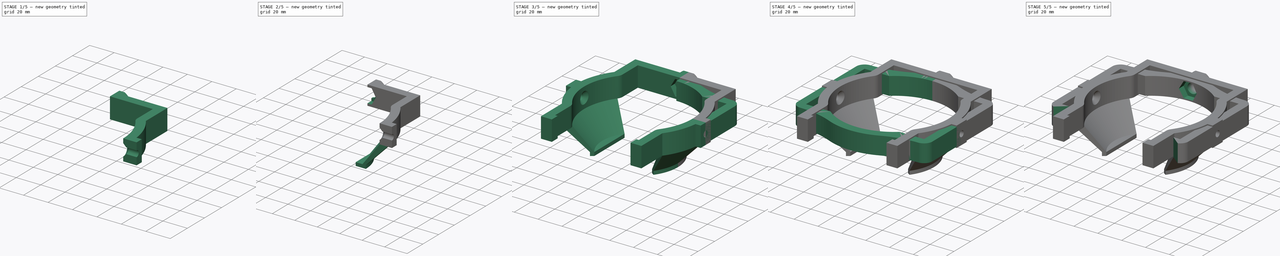
[diagram: build sequence overview — one tinted view per stage of 5, left to right]
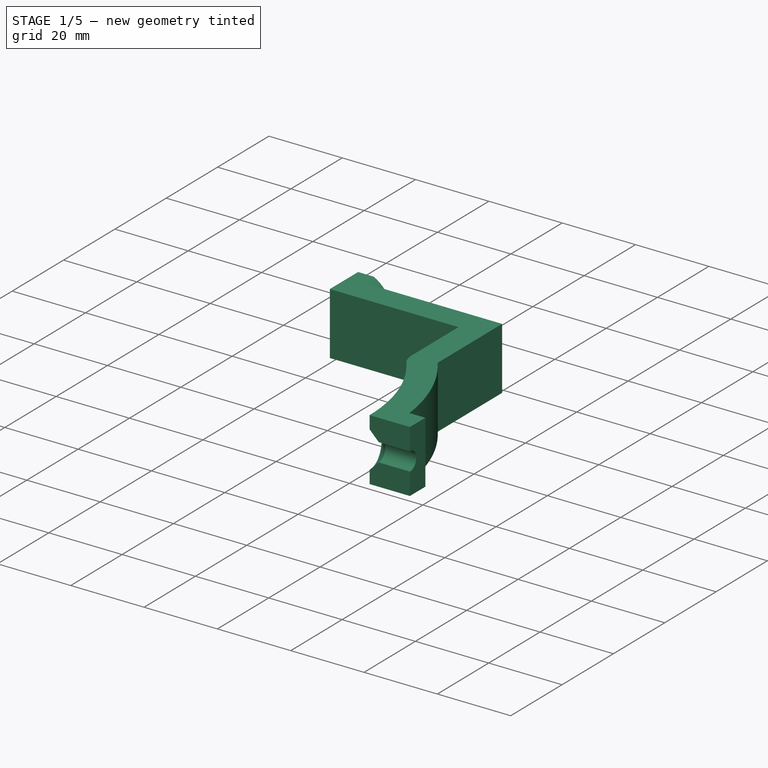
[diagram: stage 1 of 5 — iso view after this stage's code; geometry added in this stage tinted green]
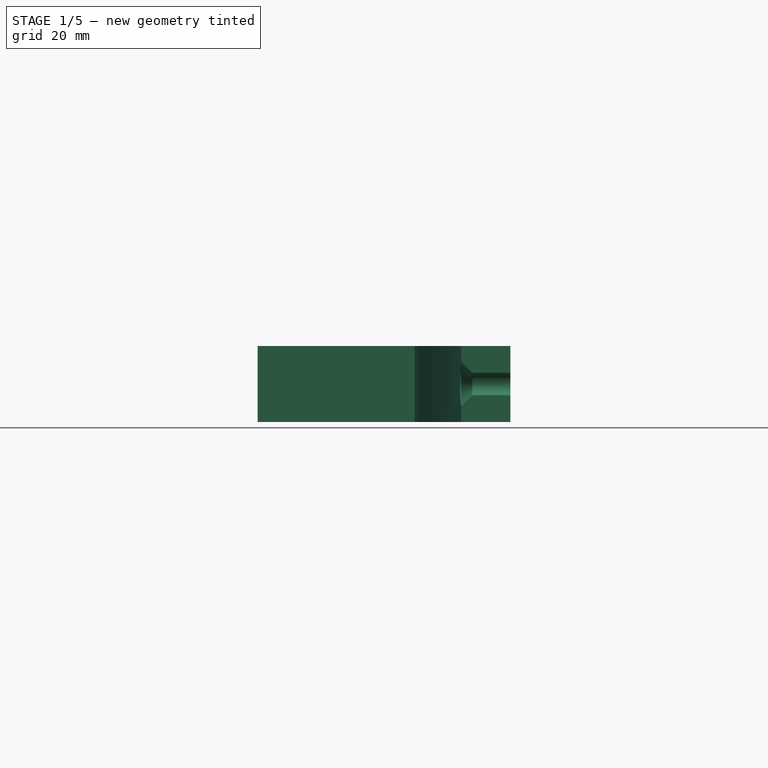
[diagram: stage 1 of 5 — front view after this stage's code; geometry added in this stage tinted green]
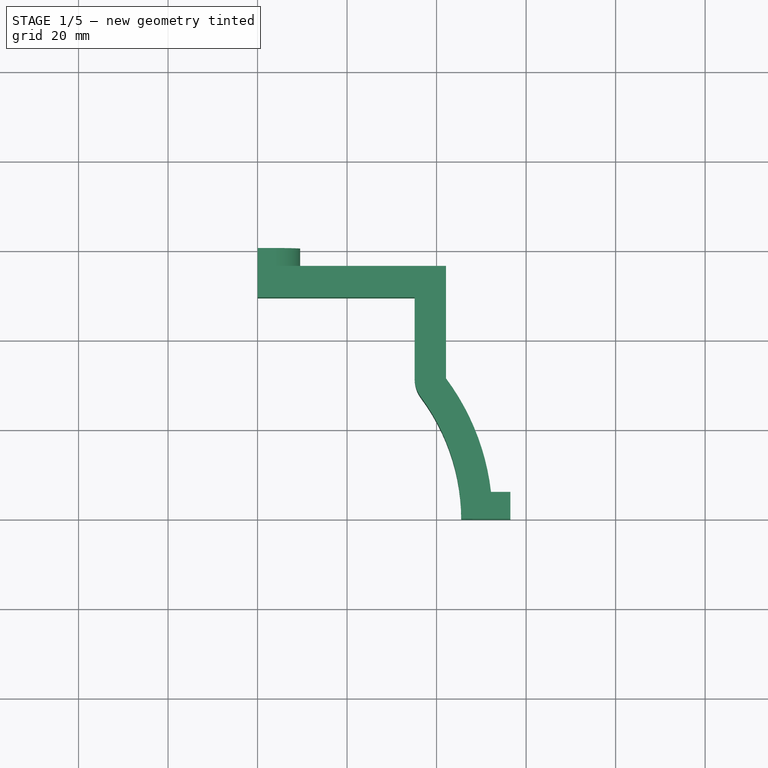
[diagram: stage 1 of 5 — top view after this stage's code; geometry added in this stage tinted green]
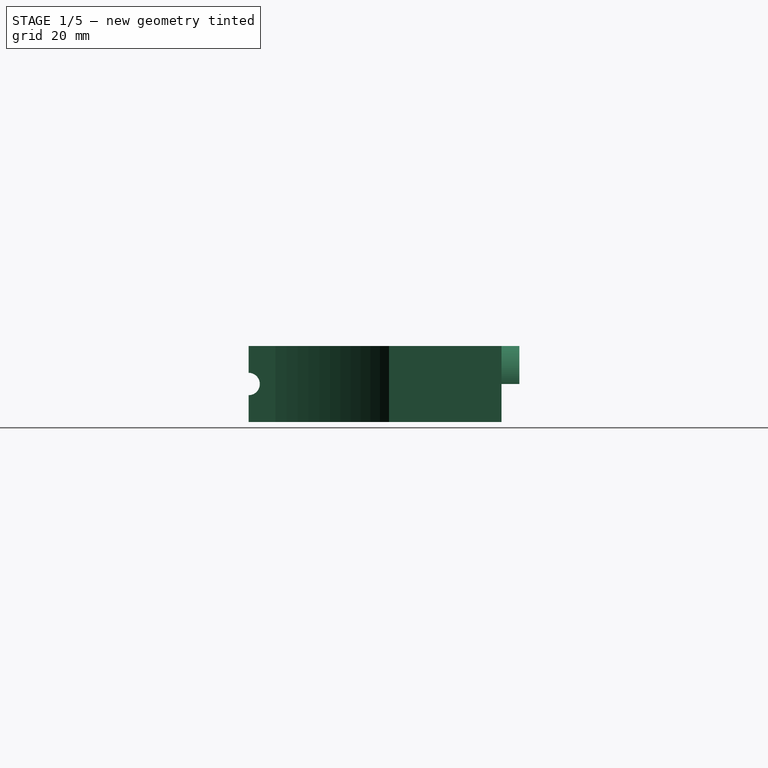
[diagram: stage 1 of 5 — right view after this stage's code; geometry added in this stage tinted green]
FCSTD DOCUMENT  (FreeCAD 0.20R29410 (Git))
Label: datind_ring_70
License: All rights reserved
LicenseURL: http://en.wikipedia.org/wiki/All_rights_reserved
objects: Sketcher::SketchObject×16, PartDesign::Mirrored×10, PartDesign::Pocket×7, PartDesign::Pad×5, PartDesign::MultiTransform×4, PartDesign::Hole×2, PartDesign::Body×2, PartDesign::AdditiveLoft×1
note: 62 computed .brp shape members not serialized (recipe doc carries the construction recipe); baked Part::Feature solids carry a one-line shape summary decoded from their .brp

FEATURE [PartDesign::Body] Body
  Group = -> [Sketch,Pad,Sketch001,Hole,Sketch002,Sketch003,Sketch004,Pad001,MultiTransform,Mirrored,Mirrored001,MultiTransform001,Mirrored002,Mirrored003,Pocket,Pocket001,Sketch005,Pocket002,Mirrored004]
  Origin = -> Origin
  Tip = -> Mirrored004
FEATURE [Sketcher::SketchObject] Sketch006
  FullyConstrained = true
  MapMode = 5
  Support = -> [XY_Plane001]
  sketch-geometry (16):
    g0: LineSegment StartX=0 StartY=56.5 StartZ=0 EndX=42.1 EndY=56.5 EndZ=0
    g1: LineSegment StartX=42.1 StartY=56.5 StartZ=0 EndX=42.1 EndY=31.3662 EndZ=0
    g2: ArcOfCircle CenterX=0 CenterY=0 CenterZ=0 NormalX=0 NormalY=0 NormalZ=1 AngleXU=0 Radius=52.5 StartAngle=0 EndAngle=0.64032
    g3: ArcOfCircle CenterX=0 CenterY=0 CenterZ=0 NormalX=0 NormalY=0 NormalZ=1 AngleXU=0 Radius=45.5 StartAngle=0 EndAngle=0.64032
    g4: ArcOfCircle CenterX=42.1 CenterY=31.3662 CenterZ=0 NormalX=0 NormalY=0 NormalZ=1 AngleXU=0 Radius=7 StartAngle=3.14159 EndAngle=3.78191
    g5: LineSegment StartX=35.1 StartY=31.3662 StartZ=0 EndX=35.1 EndY=49.5 EndZ=0
    g6: LineSegment StartX=35.1 StartY=49.5 StartZ=0 EndX=0 EndY=49.5 EndZ=0
    g7: LineSegment StartX=0 StartY=56.5 StartZ=0 EndX=0 EndY=49.5 EndZ=0
    g8: LineSegment StartX=52.5 StartY=0 StartZ=0 EndX=45.5 EndY=0 EndZ=0
    g9: LineSegment StartX=0 StartY=0 StartZ=0 EndX=42.1 EndY=31.3662 EndZ=0
    g10: LineSegment StartX=35.1 StartY=31.3662 StartZ=0 EndX=42.1 EndY=31.3662 EndZ=0
    g11: GeomPoint X=0 Y=45.5 Z=0
    g12: LineSegment StartX=52.5 StartY=0 StartZ=0 EndX=56.5 EndY=0 EndZ=0
    g13: LineSegment StartX=56.5 StartY=0 StartZ=0 EndX=56.5 EndY=6 EndZ=0
    g14: LineSegment StartX=56.5 StartY=6 StartZ=0 EndX=52.156 EndY=6 EndZ=0
    g15: ArcOfCircle CenterX=0 CenterY=0 CenterZ=0 NormalX=0 NormalY=0 NormalZ=1 AngleXU=0 Radius=52.5 StartAngle=0.114536 EndAngle=0.64032
  constraints (44):
    c: PointOnObject(g0,g-2)
    c: Horizontal(g0)
    c: Coincident(g1,g0)
    c: Vertical(g1)
    c: Coincident(g2,g-1)
    c: Coincident(g2,g1)
    c: PointOnObject(g2,g-1)
    c: Coincident(g3,g2)
    c: PointOnObject(g3,g-1)
    c: Vertical(g5)
    c: Coincident(g6,g5)
    c: PointOnObject(g6,g-2)
    c: Horizontal(g6)
    c: Coincident(g7,g0)
    c: Coincident(g7,g6)
    c: Coincident(g8,g2)
    c: Coincident(g8,g3)
    c: Coincident(g9,g2)
    c: Coincident(g9,g4)
    c: PointOnObject(g1,g9)
    c: Coincident(g10,g4)
    c: PointOnObject(g10,g1)
    c: Horizontal(g10)
    c: Tangent(g4,g3) = 1.5708
    c: Tangent(g5,g4) = 1.5708
    c: Equal(g10,g7)
    c: Equal(g7,g8)
    c: Distance(g7) = 7  'thickness'
    c: Diameter(g3) = 91  'cup_r'
    c: DistanceX(g5) = 35.1
    c: PointOnObject(g11,g-2)
    c: PointOnObject(g11,g3)
    c: DistanceY(g11,g6) = 4  'shell_offset'
    c: Coincident(g12,g8)
    c: PointOnObject(g12,g-1)
    c: Coincident(g13,g12)
    c: Vertical(g13)
    c: Coincident(g14,g13)
    c: Horizontal(g14)
    c: Coincident(g15,g3)
    c: Coincident(g15,g14)
    c: Coincident(g15,g1)
    c: Distance(g12) = 4
    c: Distance(g13) = 6
FEATURE [PartDesign::Pad] Pad002
  Direction = (0,0,1)
  Length = 17
  Length2 = 10
  Midplane = true
  Profile = -> Sketch006
  ReferenceAxis = -> Sketch006 [N_Axis]
  Type = 0
FEATURE [Sketcher::SketchObject] Sketch007
  AttachmentOffset = pos=(0,0,45.5) rot=(0,0,1;0rad)
  FullyConstrained = true
  MapMode = 5
  Placement = pos=(45.5,-1.01e-14,1.01e-14) rot=(0.57735,0.57735,0.57735;2.0944rad)
  Support = -> [YZ_Plane001]
  expr: .AttachmentOffset.Base.z = Sketch006.Constraints.cup_r / 2
  sketch-geometry (1):
    g0: Circle CenterX=0 CenterY=0 CenterZ=0 NormalX=0 NormalY=0 NormalZ=1 AngleXU=0 Radius=5
  constraints (2):
    c: Coincident(g0,g-1)
    c: Diameter(g0) = 10
FEATURE [PartDesign::Hole] Hole001
  BaseFeature = -> Pad002
  CustomThreadClearance = 0
  Depth = 161.062
  DepthType = 1
  Diameter = 5
  DrillForDepth = false
  DrillPoint = 1
  DrillPointAngle = 121
  HoleCutCountersinkAngle = 90
  HoleCutCustomValues = false
  HoleCutDepth = 0
  HoleCutDiameter = 10
  HoleCutType = 2
  ModelThread = false
  Profile = -> Sketch007
  Reversed = true
  Tapered = false
  TaperedAngle = 90
  ThreadClass = 0
  ThreadDepth = 161.062
  ThreadDepthType = 0
  ThreadDirection = 0
  ThreadFit = 0
  ThreadSize = 12
  ThreadType = 1
  Threaded = false
  UseCustomThreadClearance = false
FEATURE [PartDesign::Pocket] Pocket003
  BaseFeature = -> Hole001
  Direction = (-1,2e-16,-3e-16)
  Length = 5
  Length2 = 5
  Profile = -> Sketch007
  ReferenceAxis = -> Sketch007 [N_Axis]
  Type = 0
FEATURE [Sketcher::SketchObject] Sketch008
  FullyConstrained = true
  MapMode = 5
  Placement = pos=(0,0,0) rot=(1,0,0;1.5708rad)
  Support = -> [XZ_Plane001]
  sketch-geometry (1):
    g0: Circle CenterX=0 CenterY=0 CenterZ=0 NormalX=0 NormalY=0 NormalZ=1 AngleXU=0 Radius=4.25
  constraints (2):
    c: Coincident(g0,g-1)
    c: Diameter(g0) = 8.5
FEATURE [Sketcher::SketchObject] Sketch009
  AttachmentOffset = pos=(0,0,-49.5) rot=(0,0,1;0rad)
  FullyConstrained = true
  MapMode = 5
  Placement = pos=(0,49.5,-1.1e-14) rot=(1,0,0;1.5708rad)
  Support = -> [XZ_Plane001]
  expr: .AttachmentOffset.Base.z = -(Sketch006.Constraints.cup_r / 2 + Sketch006.Constraints.shell_offset)
  sketch-geometry (7):
    g0: LineSegment StartX=7.56329 StartY=0 StartZ=0 EndX=3.78164 EndY=6.55 EndZ=0
    g1: LineSegment StartX=3.78164 StartY=6.55 StartZ=0 EndX=-3.78164 EndY=6.55 EndZ=0
    g2: LineSegment StartX=-3.78164 StartY=6.55 StartZ=0 EndX=-7.56329 EndY=1.368e-13 EndZ=0
    g3: LineSegment StartX=-7.56329 StartY=1.368e-13 StartZ=0 EndX=-3.78164 EndY=-6.55 EndZ=0
    g4: LineSegment StartX=-3.78164 StartY=-6.55 StartZ=0 EndX=3.78164 EndY=-6.55 EndZ=0
    g5: LineSegment StartX=3.78164 StartY=-6.55 StartZ=0 EndX=7.56329 EndY=0 EndZ=0
    g6: Circle CenterX=0 CenterY=0 CenterZ=0 NormalX=0 NormalY=0 NormalZ=1 AngleXU=0 Radius=7.56329
  constraints (16):
    c: Coincident(g0,g1)
    c: Coincident(g1,g2)
    c: Coincident(g2,g3)
    c: Coincident(g3,g4)
    c: Coincident(g4,g5)
    c: Coincident(g5,g0)
    c: Equal(g0, g1-g5) x5
    c: PointOnObject(g0,g6)
    c: PointOnObject(g1,g6)
    c: PointOnObject(g2,g6)
    c: PointOnObject(g3,g6)
    c: PointOnObject(g4,g6)
    c: PointOnObject(g5,g6)
    c: Coincident(g6,g-1)
    c: PointOnObject(g5,g-1)
    c: DistanceY(g4,g0) = 13.1
FEATURE [Sketcher::SketchObject] Sketch010
  AttachmentOffset = pos=(0,0,-60.5) rot=(0,0,1;0rad)
  FullyConstrained = true
  MapMode = 5
  Placement = pos=(0,60.5,-1.34e-14) rot=(1,0,0;1.5708rad)
  Support = -> [XZ_Plane001]
  expr: .AttachmentOffset.Base.z = -(Sketch006.Constraints.cup_r / 2 + Sketch006.Constraints.shell_offset + Sketch006.Constraints.thickness + 4mm)
  expr: Constraints[10] = 13 / 2 + 3
  expr: Constraints[9] = Pad002.Length / 2
  sketch-geometry (4):
    g0: LineSegment StartX=0 StartY=8.5 StartZ=0 EndX=4.24264 EndY=8.5 EndZ=0
    g1: ArcOfCircle CenterX=0 CenterY=0 CenterZ=0 NormalX=0 NormalY=0 NormalZ=1 AngleXU=0 Radius=9.5 StartAngle=0 EndAngle=1.10784
    g2: LineSegment StartX=0 StartY=8.5 StartZ=0 EndX=0 EndY=0 EndZ=0
    g3: LineSegment StartX=0 StartY=0 StartZ=0 EndX=9.5 EndY=0 EndZ=0
  constraints (11):
    c: PointOnObject(g0,g-2)
    c: Horizontal(g0)
    c: Coincident(g1,g-1)
    c: Coincident(g1,g0)
    c: PointOnObject(g1,g-1)
    c: Coincident(g2,g0)
    c: Coincident(g2,g1)
    c: Coincident(g3,g1)
    c: Coincident(g3,g1)
    c: DistanceY(g0) = 8.5
    c: DistanceX(g1) = 9.5
FEATURE [PartDesign::Pad] Pad003
  BaseFeature = -> Pocket003
  Direction = (0,-1,2e-16)
  Length = 10
  Length2 = 10
  Profile = -> Sketch010
  ReferenceAxis = -> Sketch010 [N_Axis]
  Type = 2
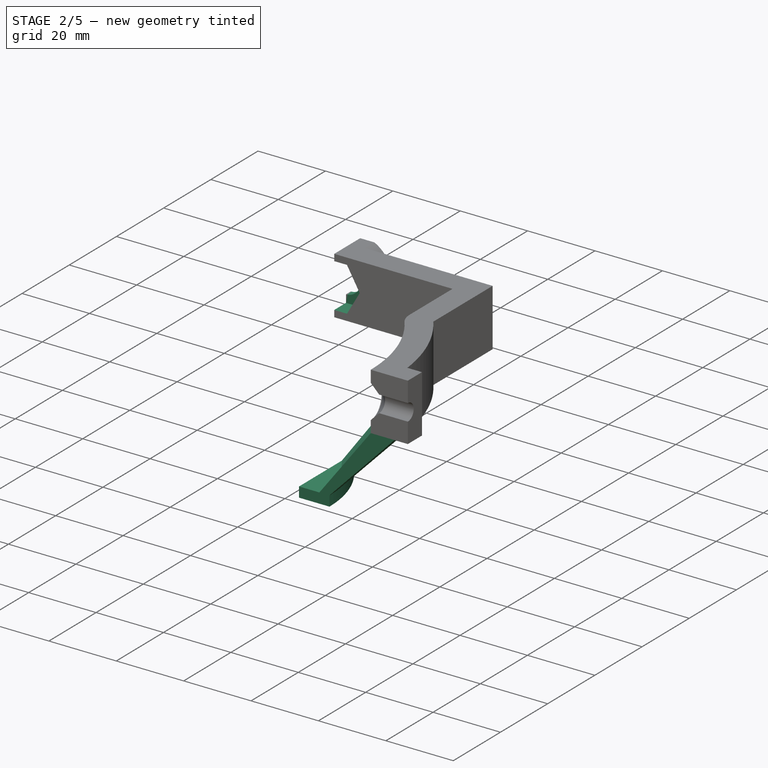
[diagram: stage 2 of 5 — iso view after this stage's code; geometry added in this stage tinted green]
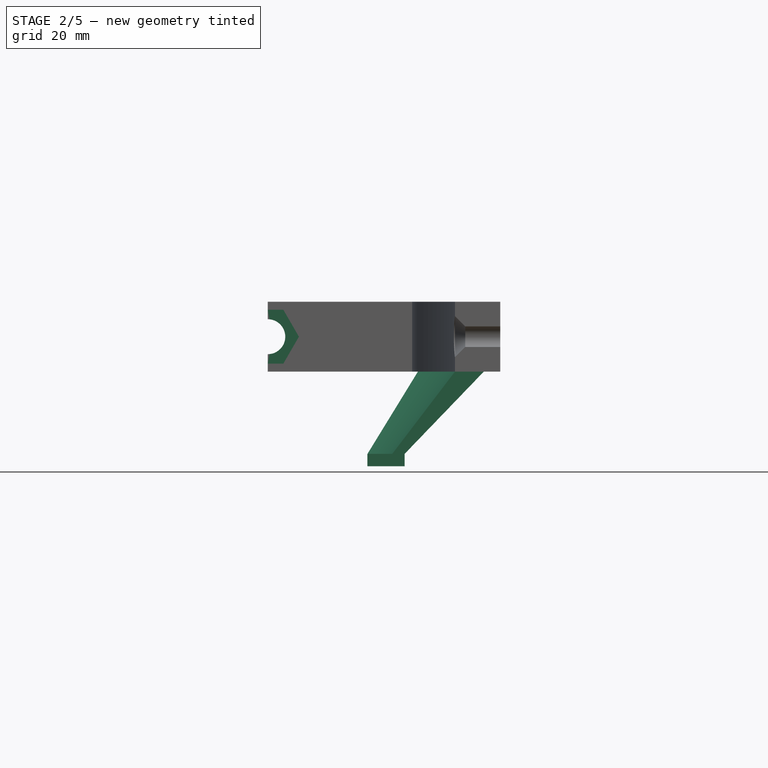
[diagram: stage 2 of 5 — front view after this stage's code; geometry added in this stage tinted green]
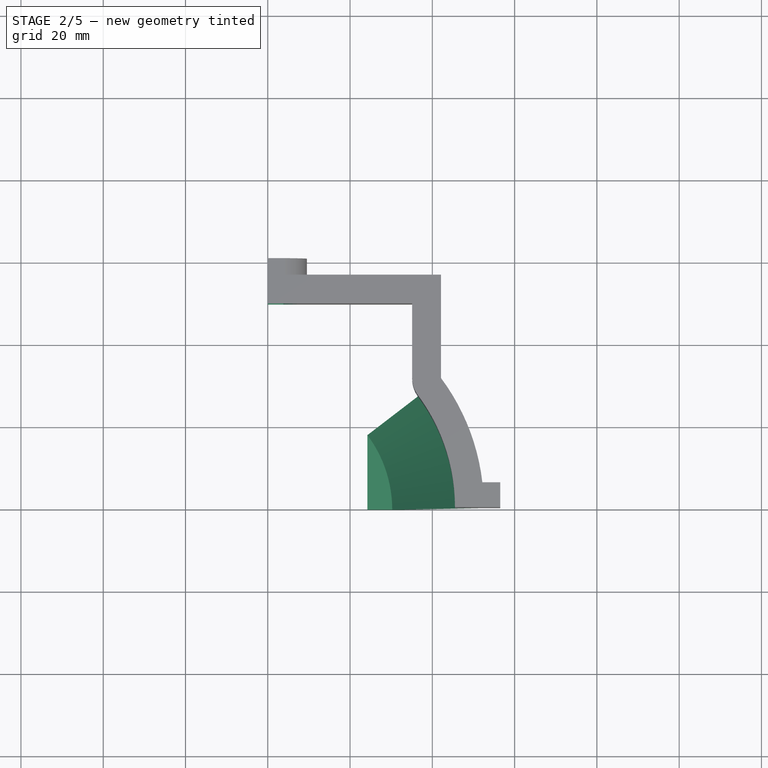
[diagram: stage 2 of 5 — top view after this stage's code; geometry added in this stage tinted green]
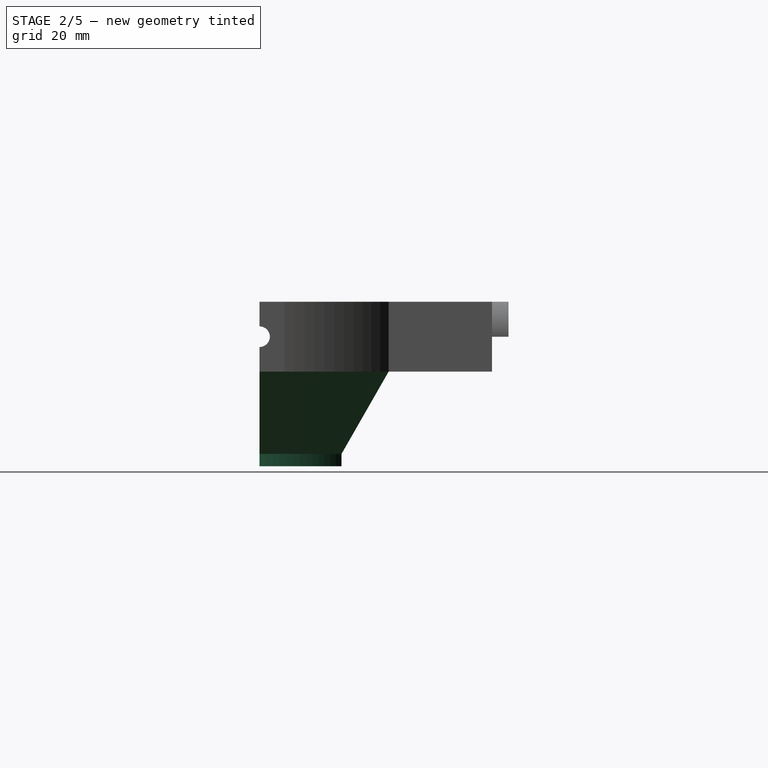
[diagram: stage 2 of 5 — right view after this stage's code; geometry added in this stage tinted green]
FEATURE [PartDesign::Pocket] Pocket004
  BaseFeature = -> Pad003
  Direction = (0,1,-2e-16)
  Length = 5
  Length2 = 5
  Profile = -> Sketch008
  ReferenceAxis = -> Sketch008 [N_Axis]
  Type = 1
FEATURE [PartDesign::Pocket] Pocket005
  BaseFeature = -> Pocket004
  Direction = (0,1,-2e-16)
  Length = 5
  Length2 = 5
  Profile = -> Sketch009
  ReferenceAxis = -> Sketch009 [N_Axis]
  Type = 0
FEATURE [Sketcher::SketchObject] Sketch011
  AttachmentOffset = pos=(0,0,-8.5) rot=(0,0,1;0rad)
  FullyConstrained = true
  MapMode = 5
  Placement = pos=(0,0,-8.5) rot=(0,0,1;0rad)
  Support = -> [XY_Plane001]
  expr: .AttachmentOffset.Base.z = -Pad002.Length / 2
  expr: .Constraints.cup_r = Sketch006.Constraints[28]
  expr: .Constraints.shell_offset = Sketch006.Constraints[32]
  expr: .Constraints.thickness = Sketch006.Constraints[27]
  expr: Constraints[28] = Sketch006.Constraints[29]
  sketch-geometry (13):
    g0: LineSegment StartX=0 StartY=56.5 StartZ=0 EndX=42.1 EndY=56.5 EndZ=0
    g1: LineSegment StartX=42.1 StartY=56.5 StartZ=0 EndX=42.1 EndY=31.3662 EndZ=0
    g2: ArcOfCircle CenterX=0 CenterY=0 CenterZ=0 NormalX=0 NormalY=0 NormalZ=1 AngleXU=0 Radius=52.5 StartAngle=0 EndAngle=0.64032
    g3: ArcOfCircle CenterX=0 CenterY=0 CenterZ=0 NormalX=0 NormalY=0 NormalZ=1 AngleXU=0 Radius=45.5 StartAngle=0 EndAngle=0.64032
    g4: ArcOfCircle CenterX=42.1 CenterY=31.3662 CenterZ=0 NormalX=0 NormalY=0 NormalZ=1 AngleXU=0 Radius=7 StartAngle=3.14159 EndAngle=3.78191
    g5: LineSegment StartX=35.1 StartY=31.3662 StartZ=0 EndX=35.1 EndY=49.5 EndZ=0
    g6: LineSegment StartX=35.1 StartY=49.5 StartZ=0 EndX=0 EndY=49.5 EndZ=0
    g7: LineSegment StartX=0 StartY=56.5 StartZ=0 EndX=0 EndY=49.5 EndZ=0
    g8: LineSegment StartX=52.5 StartY=0 StartZ=0 EndX=45.5 EndY=0 EndZ=0
    g9: LineSegment StartX=35.1 StartY=31.3662 StartZ=0 EndX=42.1 EndY=31.3662 EndZ=0
    g10: GeomPoint X=0 Y=45.5 Z=0
    g11: LineSegment StartX=0 StartY=0 StartZ=0 EndX=36.4867 EndY=27.1841 EndZ=0
    g12: LineSegment StartX=36.4867 StartY=27.1841 StartZ=0 EndX=42.1 EndY=31.3662 EndZ=0
  constraints (35):
    c: PointOnObject(g0,g-2)
    c: Horizontal(g0)
    c: Coincident(g1,g0)
    c: Vertical(g1)
    c: Coincident(g2,g-1)
    c: Coincident(g2,g1)
    c: PointOnObject(g2,g-1)
    c: Coincident(g3,g2)
    c: PointOnObject(g3,g-1)
    c: Vertical(g5)
    c: Coincident(g6,g5)
    c: PointOnObject(g6,g-2)
    c: Horizontal(g6)
    c: Coincident(g7,g0)
    c: Coincident(g7,g6)
    c: Coincident(g8,g2)
    c: Coincident(g8,g3)
    c: Coincident(g11,g2)
    c: Coincident(g12,g4)
    c: Coincident(g9,g4)
    c: PointOnObject(g9,g1)
    c: Horizontal(g9)
    c: Tangent(g4,g3) = 1.5708
    c: Tangent(g5,g4) = 1.5708
    c: Equal(g9,g7)
    c: Equal(g7,g8)
    c: Distance(g7) = 7  'thickness'
    c: Diameter(g3) = 91  'cup_r'
    c: DistanceX(g5) = 35.1
    c: PointOnObject(g10,g-2)
    c: PointOnObject(g10,g3)
    c: DistanceY(g10,g6) = 4  'shell_offset'
    c: Coincident(g11,g12)
    c: PointOnObject(g1,g12)
    c: Coincident(g11,g3)
FEATURE [Sketcher::SketchObject] Sketch012
  AttachmentOffset = pos=(0,0,-28.5) rot=(0,0,1;0rad)
  FullyConstrained = true
  MapMode = 5
  Placement = pos=(0,0,-28.5) rot=(0,0,1;0rad)
  Support = -> [XY_Plane001]
  expr: .AttachmentOffset.Base.z = Pad002.Length / 2 - 37mm
  expr: .Constraints.shell_offset = Sketch011.Constraints[31]
  sketch-geometry (13):
    g0: LineSegment StartX=0 StartY=37.25 StartZ=0 EndX=26.6243 EndY=37.25 EndZ=0
    g1: LineSegment StartX=26.6243 StartY=37.25 StartZ=0 EndX=26.6243 EndY=19.9175 EndZ=0
    g2: ArcOfCircle CenterX=0 CenterY=0 CenterZ=0 NormalX=0 NormalY=0 NormalZ=1 AngleXU=0 Radius=33.25 StartAngle=0 EndAngle=0.642281
    g3: ArcOfCircle CenterX=0 CenterY=0 CenterZ=0 NormalX=0 NormalY=0 NormalZ=1 AngleXU=0 Radius=30.25 StartAngle=0 EndAngle=0.642281
    g4: ArcOfCircle CenterX=26.6243 CenterY=19.9175 CenterZ=0 NormalX=0 NormalY=0 NormalZ=1 AngleXU=0 Radius=3 StartAngle=3.14159 EndAngle=3.78387
    g5: LineSegment StartX=23.6243 StartY=19.9175 StartZ=0 EndX=23.6243 EndY=34.25 EndZ=0
    g6: LineSegment StartX=23.6243 StartY=34.25 StartZ=0 EndX=0 EndY=34.25 EndZ=0
    g7: LineSegment StartX=0 StartY=37.25 StartZ=0 EndX=0 EndY=34.25 EndZ=0
    g8: LineSegment StartX=33.25 StartY=0 StartZ=0 EndX=30.25 EndY=0 EndZ=0
    g9: LineSegment StartX=23.6243 StartY=19.9175 StartZ=0 EndX=26.6243 EndY=19.9175 EndZ=0
    g10: GeomPoint X=0 Y=30.25 Z=0
    g11: LineSegment StartX=0 StartY=0 StartZ=0 EndX=24.2221 EndY=18.1205 EndZ=0
    g12: LineSegment StartX=24.2221 StartY=18.1205 StartZ=0 EndX=26.6243 EndY=19.9175 EndZ=0
  constraints (35):
    c: PointOnObject(g0,g-2)
    c: Horizontal(g0)
    c: Coincident(g1,g0)
    c: Vertical(g1)
    c: Coincident(g2,g-1)
    c: Coincident(g2,g1)
    c: PointOnObject(g2,g-1)
    c: Coincident(g3,g2)
    c: PointOnObject(g3,g-1)
    c: Vertical(g5)
    c: Coincident(g6,g5)
    c: PointOnObject(g6,g-2)
    c: Horizontal(g6)
    c: Coincident(g7,g0)
    c: Coincident(g7,g6)
    c: Coincident(g8,g2)
    c: Coincident(g8,g3)
    c: Coincident(g11,g2)
    c: Coincident(g12,g4)
    c: Coincident(g9,g4)
    c: PointOnObject(g9,g1)
    c: Horizontal(g9)
    c: Tangent(g4,g3) = 1.5708
    c: Tangent(g5,g4) = 1.5708
    c: Equal(g9,g7)
    c: Equal(g7,g8)
    c: Distance(g7) = 3  'thickness'
    c: Diameter(g3) = 60.5  'cup_r'
    c: PointOnObject(g10,g-2)
    c: PointOnObject(g10,g3)
    c: DistanceY(g10,g6) = 4  'shell_offset'
    c: Coincident(g11,g12)
    c: PointOnObject(g1,g12)
    c: Coincident(g11,g3)
    c: Angle(g-1,g11) = 0.642281
FEATURE [PartDesign::AdditiveLoft] AdditiveLoft
  BaseFeature = -> Pocket005
  Closed = false
  Profile = -> Sketch011
  Ruled = false
  Sections = -> [Sketch012]
FEATURE [Sketcher::SketchObject] Sketch013
  AttachmentOffset = pos=(0,0,-28.5) rot=(0,0,1;0rad)
  FullyConstrained = true
  MapMode = 5
  Placement = pos=(0,0,-28.5) rot=(0,0,1;0rad)
  Support = -> [XY_Plane001]
  expr: .AttachmentOffset.Base.z = Sketch012.AttachmentOffset.Base.z
  expr: .Constraints.cup_r = Sketch012.Constraints[27]
  expr: .Constraints.shell_offset = Sketch012.Constraints[30]
  expr: .Constraints.thickness = Sketch012.Constraints[26]
  expr: Constraints[34] = Sketch012.Constraints[34]
  sketch-geometry (15):
    g0: LineSegment StartX=0 StartY=37.25 StartZ=0 EndX=26.6243 EndY=37.25 EndZ=0
    g1: LineSegment StartX=26.6243 StartY=37.25 StartZ=0 EndX=26.6243 EndY=19.9175 EndZ=0
    g2: ArcOfCircle CenterX=0 CenterY=0 CenterZ=0 NormalX=0 NormalY=0 NormalZ=1 AngleXU=0 Radius=33.25 StartAngle=0 EndAngle=0.642281
    g3: ArcOfCircle CenterX=0 CenterY=0 CenterZ=0 NormalX=0 NormalY=0 NormalZ=1 AngleXU=0 Radius=30.25 StartAngle=0 EndAngle=0.642281
    g4: ArcOfCircle CenterX=26.6243 CenterY=19.9175 CenterZ=0 NormalX=0 NormalY=0 NormalZ=1 AngleXU=0 Radius=3 StartAngle=3.14159 EndAngle=3.78387
    g5: LineSegment StartX=23.6243 StartY=19.9175 StartZ=0 EndX=23.6243 EndY=34.25 EndZ=0
    g6: LineSegment StartX=23.6243 StartY=34.25 StartZ=0 EndX=0 EndY=34.25 EndZ=0
    g7: LineSegment StartX=0 StartY=37.25 StartZ=0 EndX=0 EndY=34.25 EndZ=0
    g8: LineSegment StartX=33.25 StartY=0 StartZ=0 EndX=30.25 EndY=0 EndZ=0
    g9: LineSegment StartX=23.6243 StartY=19.9175 StartZ=0 EndX=26.6243 EndY=19.9175 EndZ=0
    g10: GeomPoint X=0 Y=30.25 Z=0
    g11: LineSegment StartX=0 StartY=0 StartZ=0 EndX=24.2221 EndY=18.1205 EndZ=0
    g12: LineSegment StartX=24.2221 StartY=18.1205 StartZ=0 EndX=26.6243 EndY=19.9175 EndZ=0
    g13: LineSegment StartX=24.2221 StartY=18.1205 StartZ=0 EndX=24.2221 EndY=0 EndZ=0
    g14: LineSegment StartX=24.2221 StartY=0 StartZ=0 EndX=30.25 EndY=0 EndZ=0
  constraints (40):
    c: PointOnObject(g0,g-2)
    c: Horizontal(g0)
    c: Coincident(g1,g0)
    c: Vertical(g1)
    c: Coincident(g2,g-1)
    c: Coincident(g2,g1)
    c: PointOnObject(g2,g-1)
    c: Coincident(g3,g2)
    c: PointOnObject(g3,g-1)
    c: Vertical(g5)
    c: Coincident(g6,g5)
    c: PointOnObject(g6,g-2)
    c: Horizontal(g6)
    c: Coincident(g7,g0)
    c: Coincident(g7,g6)
    c: Coincident(g8,g2)
    c: Coincident(g8,g3)
    c: Coincident(g11,g2)
    c: Coincident(g12,g4)
    c: Coincident(g9,g4)
    c: PointOnObject(g9,g1)
    c: Horizontal(g9)
    c: Tangent(g4,g3) = 1.5708
    c: Tangent(g5,g4) = 1.5708
    c: Equal(g9,g7)
    c: Equal(g7,g8)
    c: Distance(g7) = 3  'thickness'
    c: Diameter(g3) = 60.5  'cup_r'
    c: PointOnObject(g10,g-2)
    c: PointOnObject(g10,g3)
    c: DistanceY(g10,g6) = 4  'shell_offset'
    c: Coincident(g11,g12)
    c: PointOnObject(g1,g12)
    c: Coincident(g11,g3)
    c: Angle(g-1,g11) = 0.642281
    c: Coincident(g13,g12)
    c: PointOnObject(g13,g-1)
    c: Vertical(g13)
    c: Coincident(g14,g13)
    c: Coincident(g14,g8)
FEATURE [PartDesign::Pad] Pad004
  BaseFeature = -> AdditiveLoft
  Direction = (0,0,1)
  Length = 3
  Length2 = 10
  Profile = -> Sketch013
  ReferenceAxis = -> Sketch013 [N_Axis]
  Reversed = true
  Type = 0
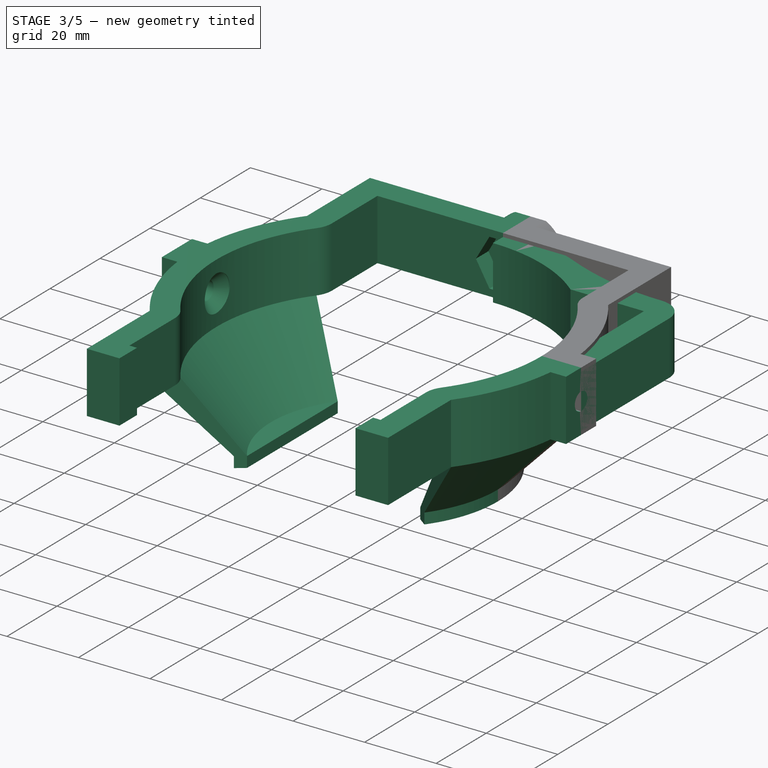
[diagram: stage 3 of 5 — iso view after this stage's code; geometry added in this stage tinted green]
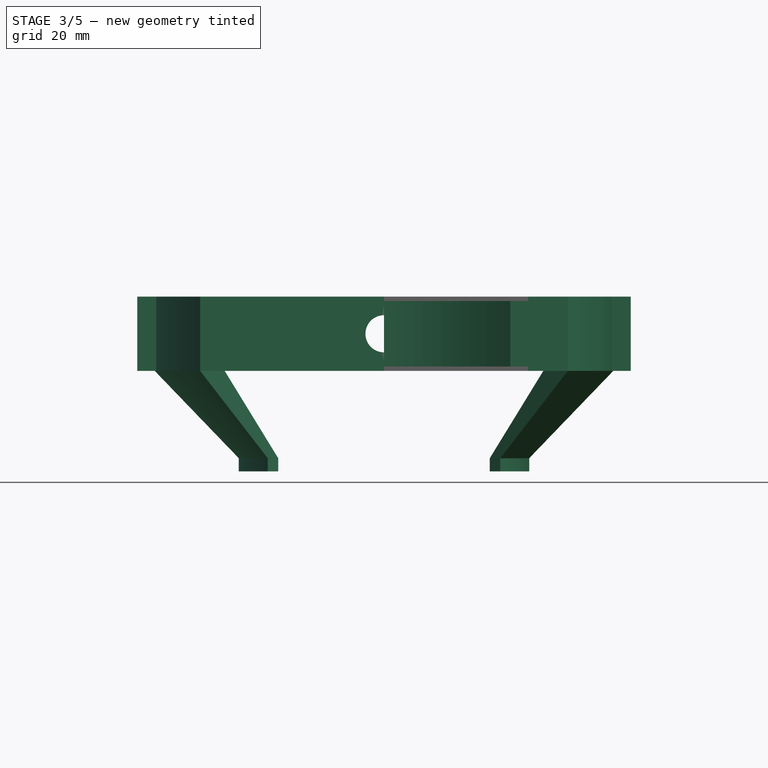
[diagram: stage 3 of 5 — front view after this stage's code; geometry added in this stage tinted green]
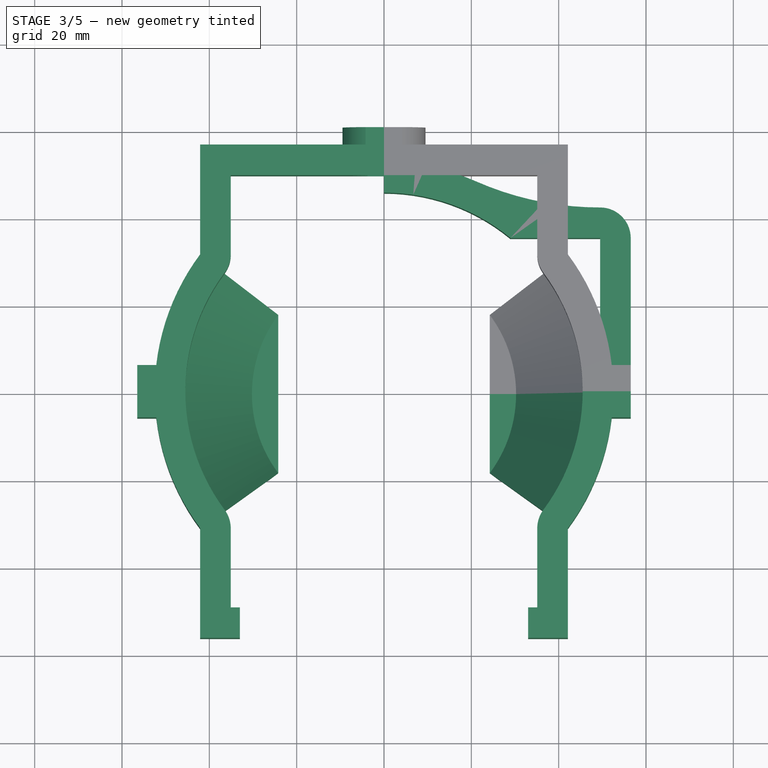
[diagram: stage 3 of 5 — top view after this stage's code; geometry added in this stage tinted green]
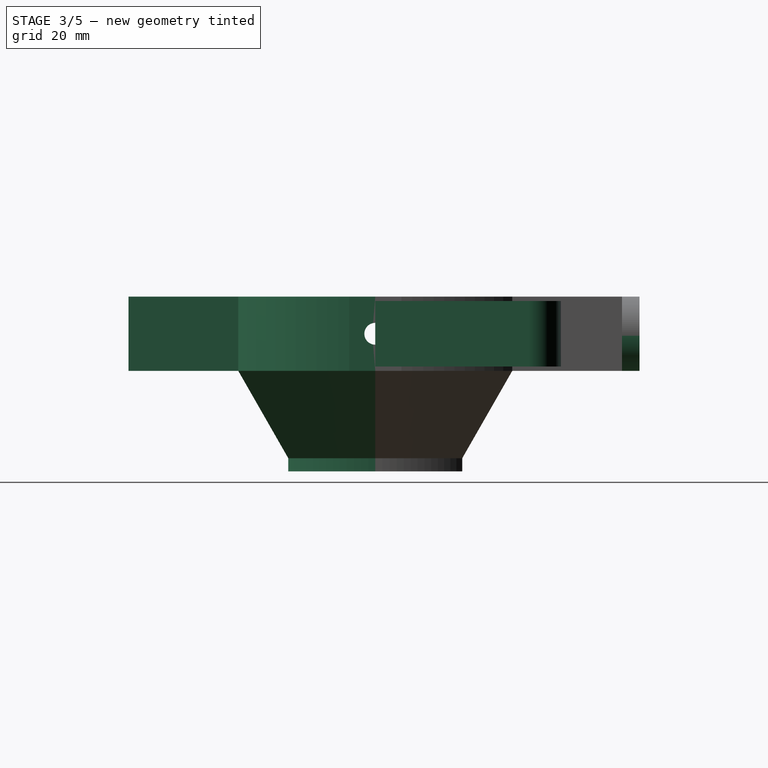
[diagram: stage 3 of 5 — right view after this stage's code; geometry added in this stage tinted green]
FEATURE [Sketcher::SketchObject] Sketch
  FullyConstrained = true
  MapMode = 5
  Support = -> [XY_Plane]
  sketch-geometry (10):
    g0: ArcOfCircle CenterX=0 CenterY=0 CenterZ=0 NormalX=0 NormalY=0 NormalZ=1 AngleXU=0 Radius=45.5 StartAngle=0.881083 EndAngle=1.5708
    g1: LineSegment StartX=28.9524 StartY=35.1 StartZ=0 EndX=49.5 EndY=35.1 EndZ=0
    g2: LineSegment StartX=49.5 StartY=35.1 StartZ=0 EndX=49.5 EndY=0 EndZ=0
    g3: LineSegment StartX=56.5 StartY=35.1 StartZ=0 EndX=56.5 EndY=0 EndZ=0
    g4: GeomPoint X=45.5 Y=0 Z=0
    g5: LineSegment StartX=2.8e-15 StartY=45.5 StartZ=0 EndX=3.2e-15 EndY=52.5 EndZ=0
    g6: LineSegment StartX=49.5 StartY=0 StartZ=0 EndX=56.5 EndY=0 EndZ=0
    g7: ArcOfCircle CenterX=49.5 CenterY=35.1 CenterZ=0 NormalX=0 NormalY=0 NormalZ=1 AngleXU=0 Radius=7 StartAngle=2e-16 EndAngle=1.5708
    g8: ArcOfCircle CenterX=0 CenterY=0 CenterZ=0 NormalX=0 NormalY=0 NormalZ=1 AngleXU=0 Radius=52.5 StartAngle=1.15662 EndAngle=1.5708
    g9: ArcOfCircle CenterX=49.5 CenterY=112.6 CenterZ=0 NormalX=0 NormalY=0 NormalZ=1 AngleXU=0 Radius=70.5005 StartAngle=4.29821 EndAngle=4.71239
  constraints (27):
    c: PointOnObject(g5,g-2)
    c: PointOnObject(g0,g-2)
    c: Coincident(g1,g0)
    c: Horizontal(g1)
    c: Coincident(g2,g1)
    c: PointOnObject(g2,g-1)
    c: Vertical(g2)
    c: PointOnObject(g3,g-1)
    c: Vertical(g3)
    c: Distance(g2) = 35.1
    c: PointOnObject(g4,g-1)
    c: PointOnObject(g4,g0)
    c: Distance(g4,g2) = 4
    c: Diameter(g0) = 91
    c: Coincident(g5,g0)
    c: Coincident(g6,g2)
    c: Coincident(g6,g3)
    c: Distance(g6) = 7
    c: Coincident(g7,g1)
    c: Coincident(g8,g0)
    c: Coincident(g8,g5)
    c: Tangent(g7,g3) = 1.5708
    c: Tangent(g9,g7) = 1.5708
    c: Tangent(g9,g8) = 1.5708
    c: Equal(g6,g5)
    c: Coincident(g0,g-1)
    c: Vertical(g7,g1)
FEATURE [PartDesign::Pad] Pad
  Direction = (0,0,1)
  Length = 15
  Length2 = 10
  Midplane = true
  Profile = -> Sketch
  ReferenceAxis = -> Sketch [N_Axis]
  Type = 0
FEATURE [PartDesign::Mirrored] Mirrored005
  MirrorPlane = -> Sketch006 [V_Axis]
FEATURE [PartDesign::Mirrored] Mirrored006
  MirrorPlane = -> Sketch006 [H_Axis]
FEATURE [PartDesign::MultiTransform] MultiTransform002
  BaseFeature = -> Pad004
  Originals = -> [Pad002,Hole001,Pocket003,AdditiveLoft,Pad004]
  Transformations = -> [Mirrored005,Mirrored006]
FEATURE [PartDesign::Mirrored] Mirrored007
  MirrorPlane = -> Sketch010 [V_Axis]
FEATURE [PartDesign::Mirrored] Mirrored008
  MirrorPlane = -> Sketch010 [H_Axis]
FEATURE [PartDesign::MultiTransform] MultiTransform003
  BaseFeature = -> MultiTransform002
  Originals = -> [Pad003]
  Transformations = -> [Mirrored007,Mirrored008]
FEATURE [Sketcher::SketchObject] Sketch014
  FullyConstrained = true
  MapMode = 5
  Support = -> [XY_Plane001]
  expr: .Constraints.cup_r = Sketch006.Constraints[28]
  expr: .Constraints.shell_offset = Sketch006.Constraints[32]
  expr: .Constraints.thickness = Sketch006.Constraints[27]
  expr: Constraints[37] = Sketch006.Constraints[29]
  sketch-geometry (16):
    g0: LineSegment StartX=0 StartY=-49.5 StartZ=0 EndX=33 EndY=-49.5 EndZ=0
    g1: LineSegment StartX=33 StartY=-49.5 StartZ=0 EndX=33 EndY=-56.5 EndZ=0
    g2: LineSegment StartX=33 StartY=-56.5 StartZ=0 EndX=0 EndY=-56.5 EndZ=0
    g3: LineSegment StartX=0 StartY=-56.5 StartZ=0 EndX=0 EndY=-49.5 EndZ=0
    g4: LineSegment StartX=0 StartY=56.5 StartZ=0 EndX=42.1 EndY=56.5 EndZ=0
    g5: LineSegment StartX=42.1 StartY=56.5 StartZ=0 EndX=42.1 EndY=31.3662 EndZ=0
    g6: ArcOfCircle CenterX=0 CenterY=0 CenterZ=0 NormalX=0 NormalY=0 NormalZ=1 AngleXU=0 Radius=52.5 StartAngle=0 EndAngle=0.64032
    g7: ArcOfCircle CenterX=0 CenterY=0 CenterZ=0 NormalX=0 NormalY=0 NormalZ=1 AngleXU=0 Radius=45.5 StartAngle=0 EndAngle=0.64032
    g8: ArcOfCircle CenterX=42.1 CenterY=31.3662 CenterZ=0 NormalX=0 NormalY=0 NormalZ=1 AngleXU=0 Radius=7 StartAngle=3.14159 EndAngle=3.78191
    g9: LineSegment StartX=35.1 StartY=31.3662 StartZ=0 EndX=35.1 EndY=49.5 EndZ=0
    g10: LineSegment StartX=35.1 StartY=49.5 StartZ=0 EndX=0 EndY=49.5 EndZ=0
    g11: LineSegment StartX=0 StartY=56.5 StartZ=0 EndX=0 EndY=49.5 EndZ=0
    g12: LineSegment StartX=52.5 StartY=0 StartZ=0 EndX=45.5 EndY=0 EndZ=0
    g13: LineSegment StartX=0 StartY=0 StartZ=0 EndX=42.1 EndY=31.3662 EndZ=0
    g14: LineSegment StartX=35.1 StartY=31.3662 StartZ=0 EndX=42.1 EndY=31.3662 EndZ=0
    g15: GeomPoint X=0 Y=45.5 Z=0
  constraints (44):
    c: Coincident(g0,g1)
    c: Coincident(g1,g2)
    c: Coincident(g2,g3)
    c: Coincident(g3,g0)
    c: Horizontal(g0)
    c: Horizontal(g2)
    c: Vertical(g1)
    c: Vertical(g3)
    c: PointOnObject(g0,g-2)
    c: PointOnObject(g4,g-2)
    c: Horizontal(g4)
    c: Coincident(g5,g4)
    c: Vertical(g5)
    c: Coincident(g6,g-1)
    c: Coincident(g6,g5)
    c: PointOnObject(g6,g-1)
    c: Coincident(g7,g6)
    c: PointOnObject(g7,g-1)
    c: Vertical(g9)
    c: Coincident(g10,g9)
    c: Horizontal(g10)
    c: Coincident(g11,g4)
    c: Coincident(g11,g10)
    c: Coincident(g12,g6)
    c: Coincident(g12,g7)
    c: Coincident(g13,g6)
    c: Coincident(g13,g8)
    c: PointOnObject(g5,g13)
    c: Coincident(g14,g8)
    c: PointOnObject(g14,g5)
    c: Horizontal(g14)
    c: Tangent(g8,g7) = 1.5708
    c: Tangent(g9,g8) = 1.5708
    c: Equal(g14,g11)
    c: Equal(g11,g12)
    c: Distance(g11) = 7  'thickness'
    c: Diameter(g7) = 91  'cup_r'
    c: DistanceX(g9) = 35.1
    c: PointOnObject(g15,g-2)
    c: PointOnObject(g15,g7)
    c: DistanceY(g15,g10) = 4  'shell_offset'
    c: Equal(g11,g3)
    c: Symmetric(g0,g10,g-1)
    c: Distance(g2) = 33
FEATURE [PartDesign::Pocket] Pocket006
  BaseFeature = -> MultiTransform003
  Direction = (0,0,-1)
  Length = 5
  Length2 = 5
  Midplane = true
  Profile = -> Sketch014
  ReferenceAxis = -> Sketch014 [N_Axis]
  Type = 1
FEATURE [Sketcher::SketchObject] Sketch015
  AttachmentOffset = pos=(0,0,56.5) rot=(0,0,1;0rad)
  FullyConstrained = true
  MapMode = 5
  Placement = pos=(56.5,-1.25e-14,1.25e-14) rot=(0.57735,0.57735,0.57735;2.0944rad)
  Support = -> [YZ_Plane001]
  expr: .AttachmentOffset.Base.z = Sketch006.Constraints.cup_r / 2 + Sketch006.Constraints.thickness + 4mm
  sketch-geometry (2):
    g0: Circle CenterX=0 CenterY=0 CenterZ=0 NormalX=0 NormalY=0 NormalZ=1 AngleXU=0 Radius=5
    g1: Circle CenterX=0 CenterY=0 CenterZ=0 NormalX=0 NormalY=0 NormalZ=1 AngleXU=0 Radius=3.5
  constraints (4):
    c: Coincident(g0,g-1)
    c: Diameter(g0) = 10
    c: Coincident(g1,g0)
    c: Diameter(g1) = 7
FEATURE [PartDesign::Mirrored] Mirrored009
  BaseFeature = -> Pocket006
  MirrorPlane = -> Sketch008 [V_Axis]
  Originals = -> [Pocket004,Pocket005,Pocket006]
FEATURE [PartDesign::Body] Body001
  Group = -> [Sketch006,Pad002,Sketch007,Hole001,Pocket003,Sketch008,Sketch009,Sketch010,Pad003,Pocket004,Pocket005,Sketch011,Sketch012,AdditiveLoft,Sketch013,Pad004,MultiTransform002,Mirrored005,Mirrored006,MultiTransform003,Mirrored007,Mirrored008,Sketch014,Pocket006,Sketch015,Mirrored009]
  Origin = -> Origin001
  Tip = -> Mirrored009
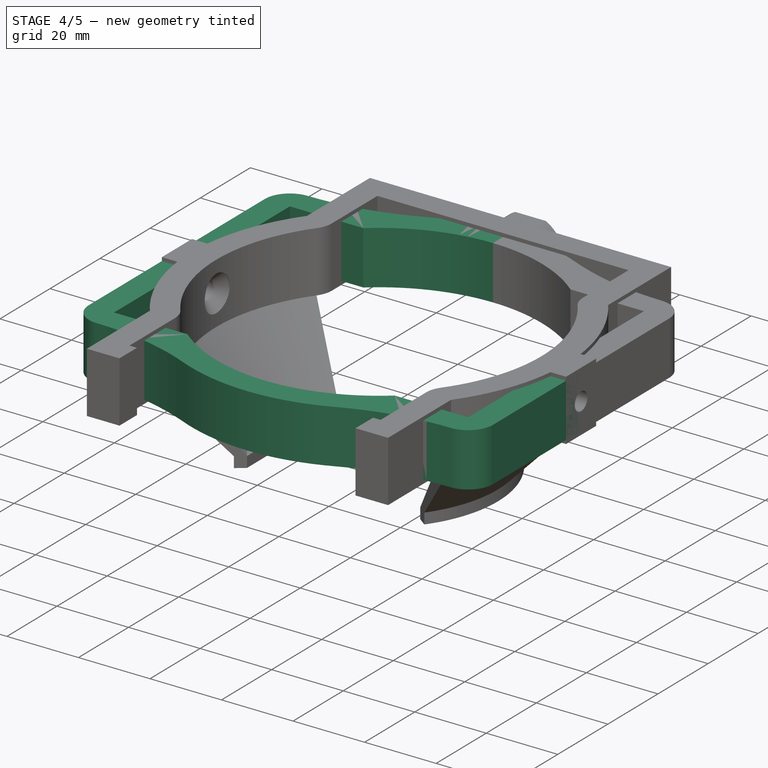
[diagram: stage 4 of 5 — iso view after this stage's code; geometry added in this stage tinted green]
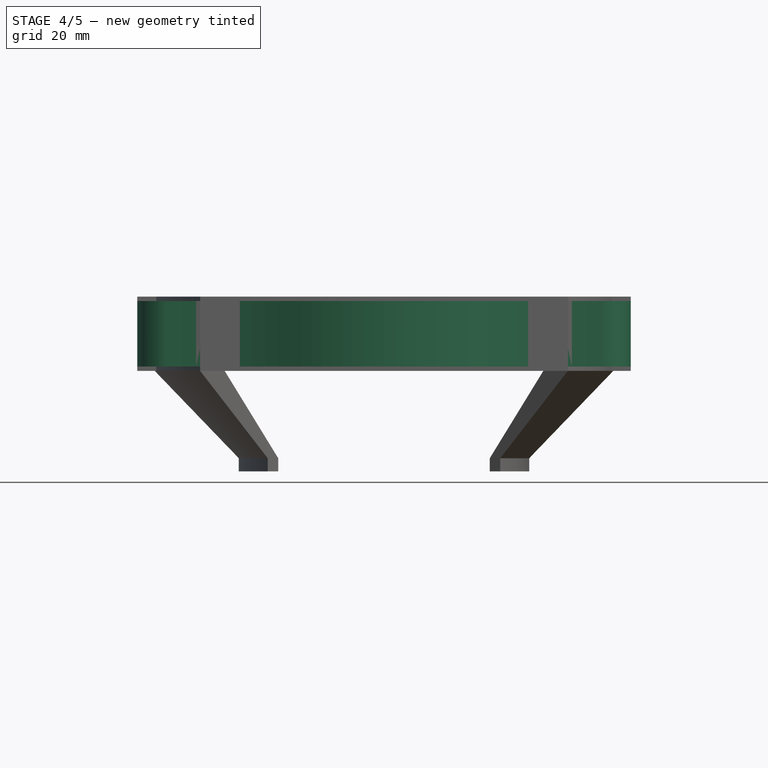
[diagram: stage 4 of 5 — front view after this stage's code; geometry added in this stage tinted green]
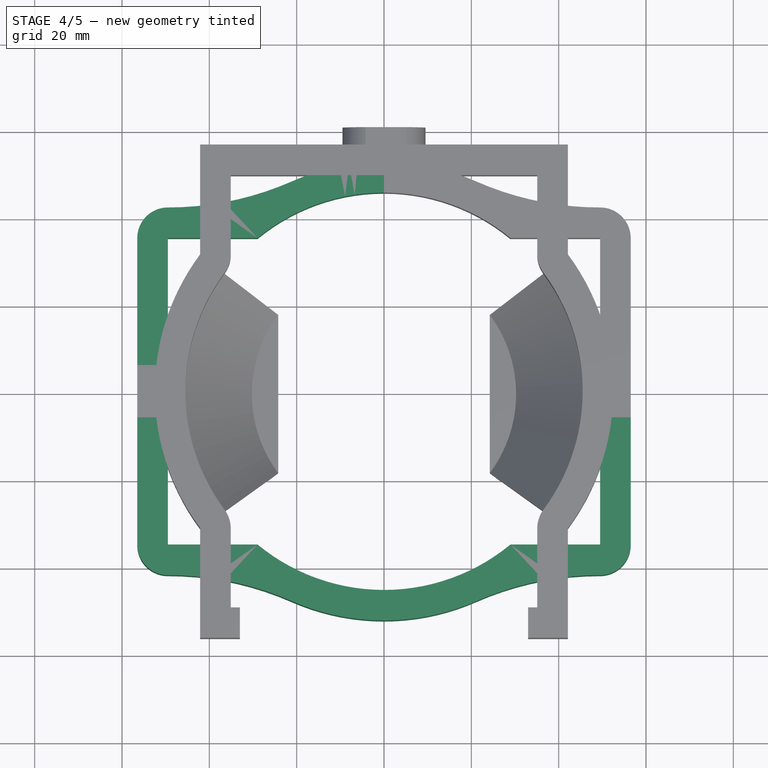
[diagram: stage 4 of 5 — top view after this stage's code; geometry added in this stage tinted green]
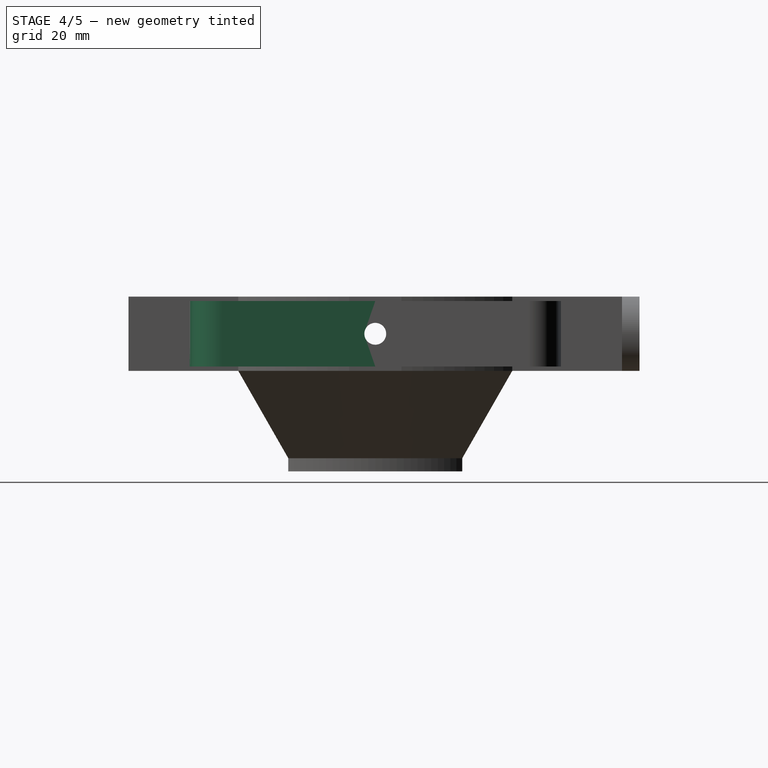
[diagram: stage 4 of 5 — right view after this stage's code; geometry added in this stage tinted green]
FEATURE [Sketcher::SketchObject] Sketch001
  AttachmentOffset = pos=(0,0,49.5) rot=(0,0,1;0rad)
  FullyConstrained = false
  MapMode = 5
  Placement = pos=(49.5,-1.1e-14,1.1e-14) rot=(0.57735,0.57735,0.57735;2.0944rad)
  Support = -> [YZ_Plane]
  sketch-geometry (1):
    g0: Circle CenterX=0 CenterY=0 CenterZ=0 NormalX=0 NormalY=0 NormalZ=1 AngleXU=0 Radius=5.61803
  constraints (1):
    c: Coincident(g0,g-1)
FEATURE [PartDesign::Hole] Hole
  BaseFeature = -> Pad
  CustomThreadClearance = 0
  Depth = 166.512
  DepthType = 1
  Diameter = 5
  DrillForDepth = false
  DrillPoint = 1
  DrillPointAngle = 118
  HoleCutCountersinkAngle = 90
  HoleCutCustomValues = false
  HoleCutDepth = 0
  HoleCutDiameter = 10
  HoleCutType = 2
  ModelThread = false
  Profile = -> Sketch001
  Reversed = true
  Tapered = false
  TaperedAngle = 90
  ThreadClass = 0
  ThreadDepth = 166.512
  ThreadDepthType = 0
  ThreadDirection = 0
  ThreadFit = 0
  ThreadSize = 12
  ThreadType = 1
  Threaded = false
  UseCustomThreadClearance = false
FEATURE [Sketcher::SketchObject] Sketch002
  FullyConstrained = true
  MapMode = 5
  Placement = pos=(0,0,0) rot=(1,0,0;1.5708rad)
  Support = -> [XZ_Plane]
  sketch-geometry (7):
    g0: LineSegment StartX=7.50555 StartY=0 StartZ=0 EndX=3.75278 EndY=6.5 EndZ=0
    g1: LineSegment StartX=3.75278 StartY=6.5 StartZ=0 EndX=-3.75278 EndY=6.5 EndZ=0
    g2: LineSegment StartX=-3.75278 StartY=6.5 StartZ=0 EndX=-7.50555 EndY=-1.8e-15 EndZ=0
    g3: LineSegment StartX=-7.50555 StartY=-1.8e-15 StartZ=0 EndX=-3.75278 EndY=-6.5 EndZ=0
    g4: LineSegment StartX=-3.75278 StartY=-6.5 StartZ=0 EndX=3.75278 EndY=-6.5 EndZ=0
    g5: LineSegment StartX=3.75278 StartY=-6.5 StartZ=0 EndX=7.50555 EndY=0 EndZ=0
    g6: Circle CenterX=0 CenterY=0 CenterZ=0 NormalX=0 NormalY=0 NormalZ=1 AngleXU=0 Radius=7.50555
  constraints (16):
    c: Coincident(g0,g1)
    c: Coincident(g1,g2)
    c: Coincident(g2,g3)
    c: Coincident(g3,g4)
    c: Coincident(g4,g5)
    c: Coincident(g5,g0)
    c: Equal(g0, g1-g5) x5
    c: PointOnObject(g0,g6)
    c: PointOnObject(g1,g6)
    c: PointOnObject(g2,g6)
    c: PointOnObject(g3,g6)
    c: PointOnObject(g4,g6)
    c: PointOnObject(g5,g6)
    c: Coincident(g6,g-1)
    c: PointOnObject(g5,g-1)
    c: Distance(g0,g4) = 13
FEATURE [Sketcher::SketchObject] Sketch003
  FullyConstrained = true
  MapMode = 5
  Placement = pos=(0,0,0) rot=(1,0,0;1.5708rad)
  Support = -> [XZ_Plane]
  sketch-geometry (1):
    g0: Circle CenterX=0 CenterY=0 CenterZ=0 NormalX=0 NormalY=0 NormalZ=1 AngleXU=0 Radius=4.25
  constraints (2):
    c: Coincident(g0,g-1)
    c: Diameter(g0) = 8.5
FEATURE [Sketcher::SketchObject] Sketch004
  AttachmentOffset = pos=(0,0,-56) rot=(0,0,1;0rad)
  FullyConstrained = true
  MapMode = 5
  Placement = pos=(0,56,1.24e-14) rot=(1,0,0;1.5708rad)
  Support = -> [XZ_Plane]
  expr: Constraints[7] = Pad.Length / 2
  sketch-geometry (4):
    g0: LineSegment StartX=0 StartY=0 StartZ=0 EndX=0 EndY=7.5 EndZ=0
    g1: LineSegment StartX=0 StartY=7.5 StartZ=0 EndX=8 EndY=7.5 EndZ=0
    g2: ArcOfCircle CenterX=-5.0625 CenterY=0 CenterZ=0 NormalX=0 NormalY=0 NormalZ=1 AngleXU=0 Radius=15.0625 StartAngle=0 EndAngle=0.521205
    g3: LineSegment StartX=0 StartY=0 StartZ=0 EndX=10 EndY=0 EndZ=0
  constraints (12):
    c: Coincident(g0,g-1)
    c: PointOnObject(g0,g-2)
    c: Coincident(g1,g0)
    c: Horizontal(g1)
    c: PointOnObject(g2,g-1)
    c: Coincident(g2,g1)
    c: PointOnObject(g2,g-1)
    c: Distance(g0) = 7.5
    c: Coincident(g3,g0)
    c: Coincident(g3,g2)
    c: Distance(g3) = 10
    c: DistanceX(g1,g2) = 2
FEATURE [PartDesign::Pad] Pad001
  BaseFeature = -> Hole
  Direction = (0,-1,-2e-16)
  Length = 10
  Length2 = 10
  Profile = -> Sketch004
  ReferenceAxis = -> Sketch004 [N_Axis]
  Type = 2
FEATURE [PartDesign::Mirrored] Mirrored
  MirrorPlane = -> Sketch [V_Axis]
FEATURE [PartDesign::Mirrored] Mirrored001
  MirrorPlane = -> Sketch [H_Axis]
FEATURE [PartDesign::MultiTransform] MultiTransform
  BaseFeature = -> Pad001
  Originals = -> [Pad,Hole]
  Transformations = -> [Mirrored,Mirrored001]
FEATURE [PartDesign::Mirrored] Mirrored002
  MirrorPlane = -> Sketch004 [V_Axis]
FEATURE [PartDesign::Mirrored] Mirrored003
  MirrorPlane = -> Sketch004 [H_Axis]
FEATURE [PartDesign::MultiTransform] MultiTransform001
  BaseFeature = -> MultiTransform
  Originals = -> [Pad001]
  Transformations = -> [Mirrored002,Mirrored003]
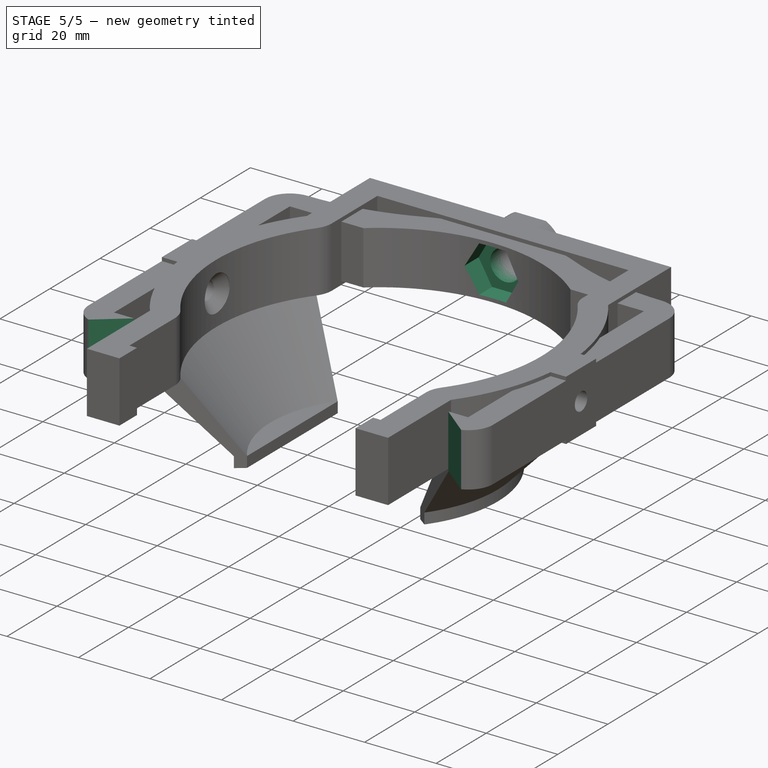
[diagram: stage 5 of 5 — iso view after this stage's code; geometry added in this stage tinted green]
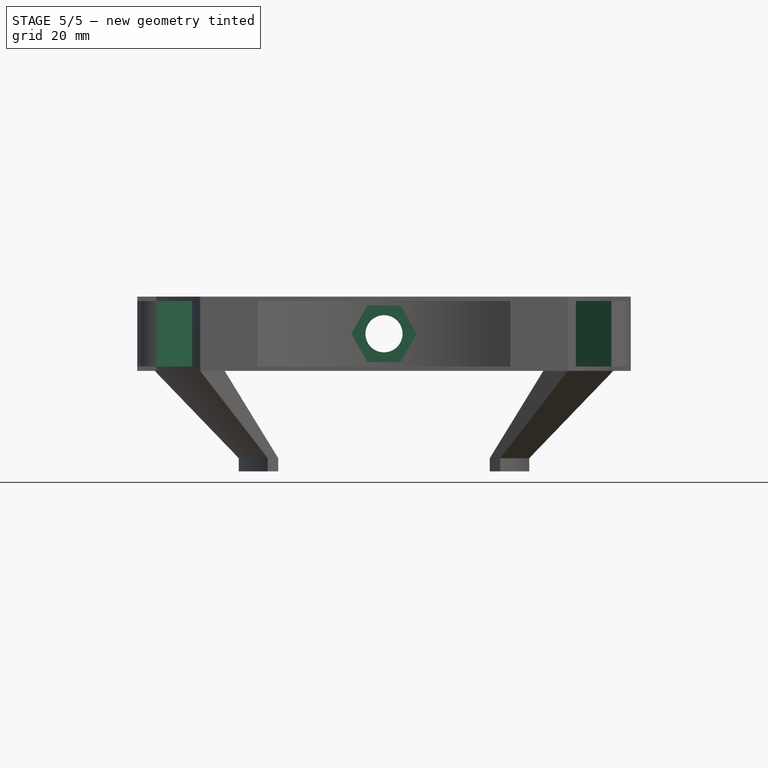
[diagram: stage 5 of 5 — front view after this stage's code; geometry added in this stage tinted green]
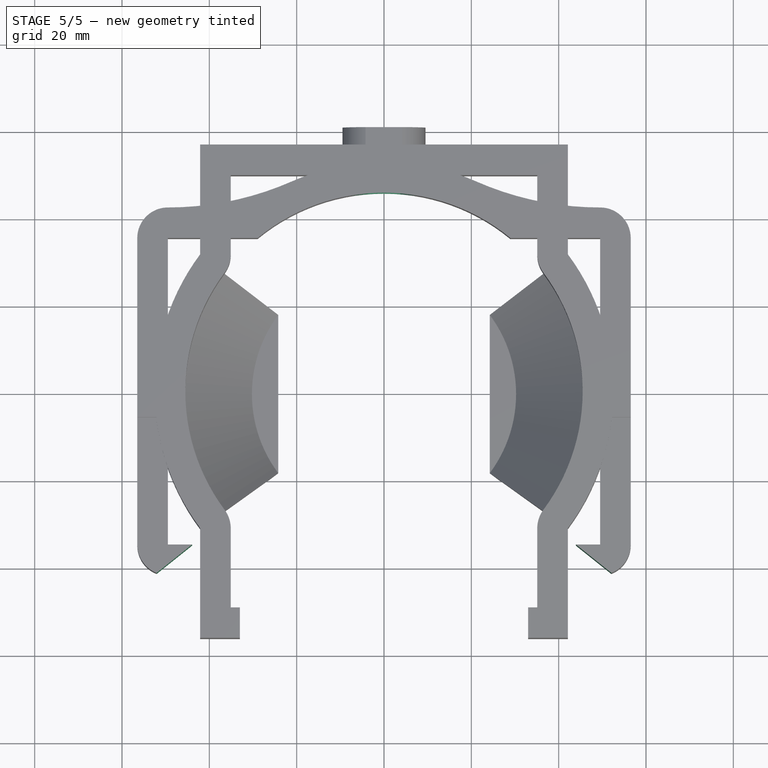
[diagram: stage 5 of 5 — top view after this stage's code; geometry added in this stage tinted green]
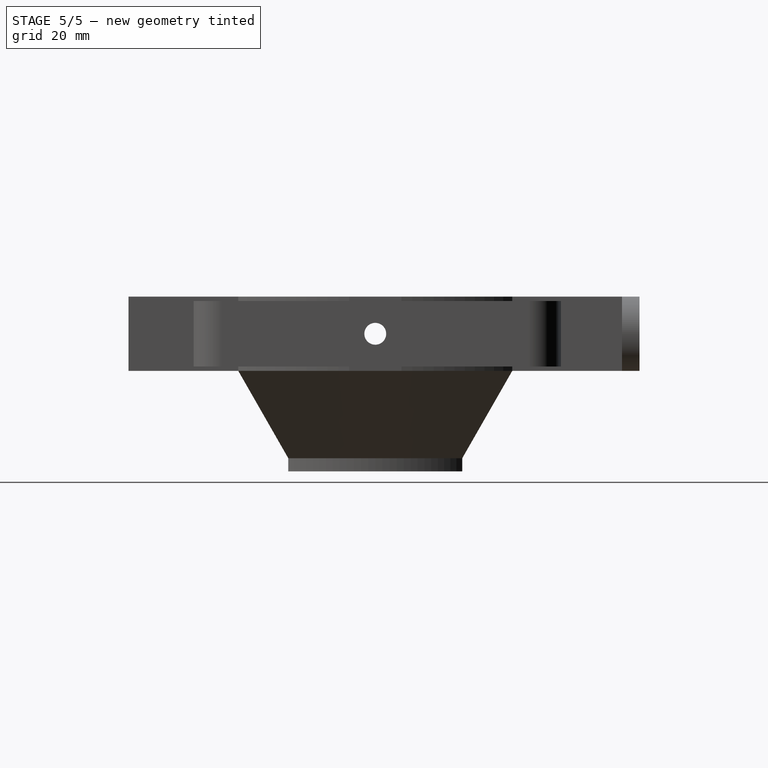
[diagram: stage 5 of 5 — right view after this stage's code; geometry added in this stage tinted green]
FEATURE [PartDesign::Pocket] Pocket
  BaseFeature = -> MultiTransform001
  Direction = (0,1,2e-16)
  Length = 50.5
  Length2 = 5
  Profile = -> Sketch002
  ReferenceAxis = -> Sketch002 [N_Axis]
  Type = 0
FEATURE [PartDesign::Pocket] Pocket001
  BaseFeature = -> Pocket
  Direction = (0,1,2e-16)
  Length = 5
  Length2 = 5
  Profile = -> Sketch003
  ReferenceAxis = -> Sketch003 [N_Axis]
  Type = 1
FEATURE [Sketcher::SketchObject] Sketch005
  FullyConstrained = false
  MapMode = 5
  Support = -> [XY_Plane]
  sketch-geometry (3):
    g0: ArcOfCircle CenterX=0 CenterY=0 CenterZ=0 NormalX=0 NormalY=0 NormalZ=1 AngleXU=0 Radius=72.6297 StartAngle=4.71239 EndAngle=5.60918
    g1: LineSegment StartX=0 StartY=-72.6297 StartZ=0 EndX=0 EndY=0 EndZ=0
    g2: LineSegment StartX=0 StartY=0 StartZ=0 EndX=56.7474 EndY=-45.3299 EndZ=0
  constraints (6):
    c: Coincident(g0,g-1)
    c: PointOnObject(g0,g-2)
    c: Coincident(g1,g0)
    c: Coincident(g1,g0)
    c: Coincident(g2,g0)
    c: Coincident(g2,g0)
FEATURE [PartDesign::Pocket] Pocket002
  BaseFeature = -> Pocket001
  Direction = (0,0,-1)
  Length = 5
  Length2 = 5
  Midplane = true
  Profile = -> Sketch005
  ReferenceAxis = -> Sketch005 [N_Axis]
  Type = 1
FEATURE [PartDesign::Mirrored] Mirrored004
  BaseFeature = -> Pocket002
  MirrorPlane = -> Sketch005 [V_Axis]
  Originals = -> [Pocket002]
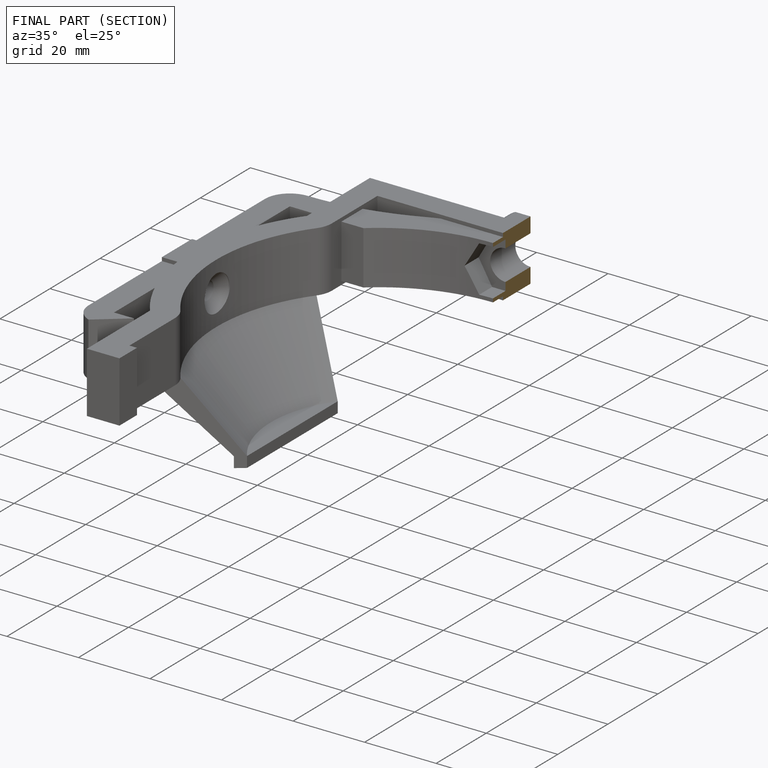
[diagram: finished part — half-section view (interior)]
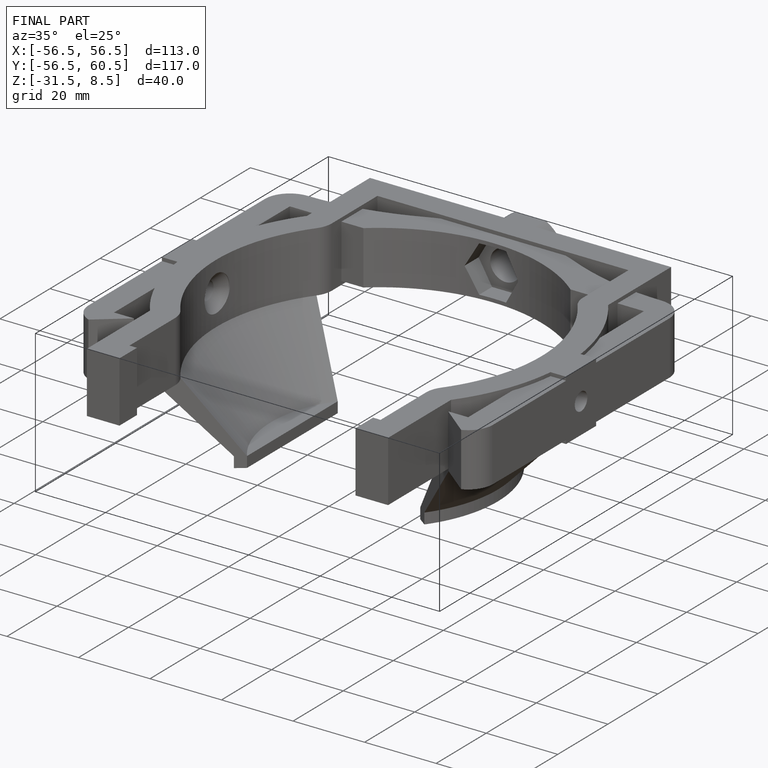
[diagram: finished part — iso view with bounding-box wireframe]
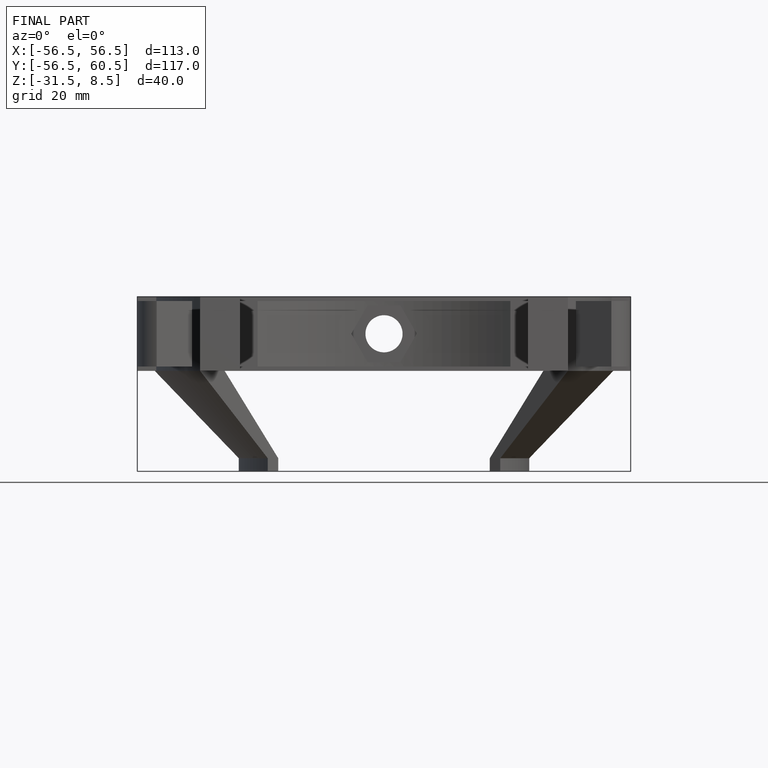
[diagram: finished part — front view with bounding-box wireframe]
